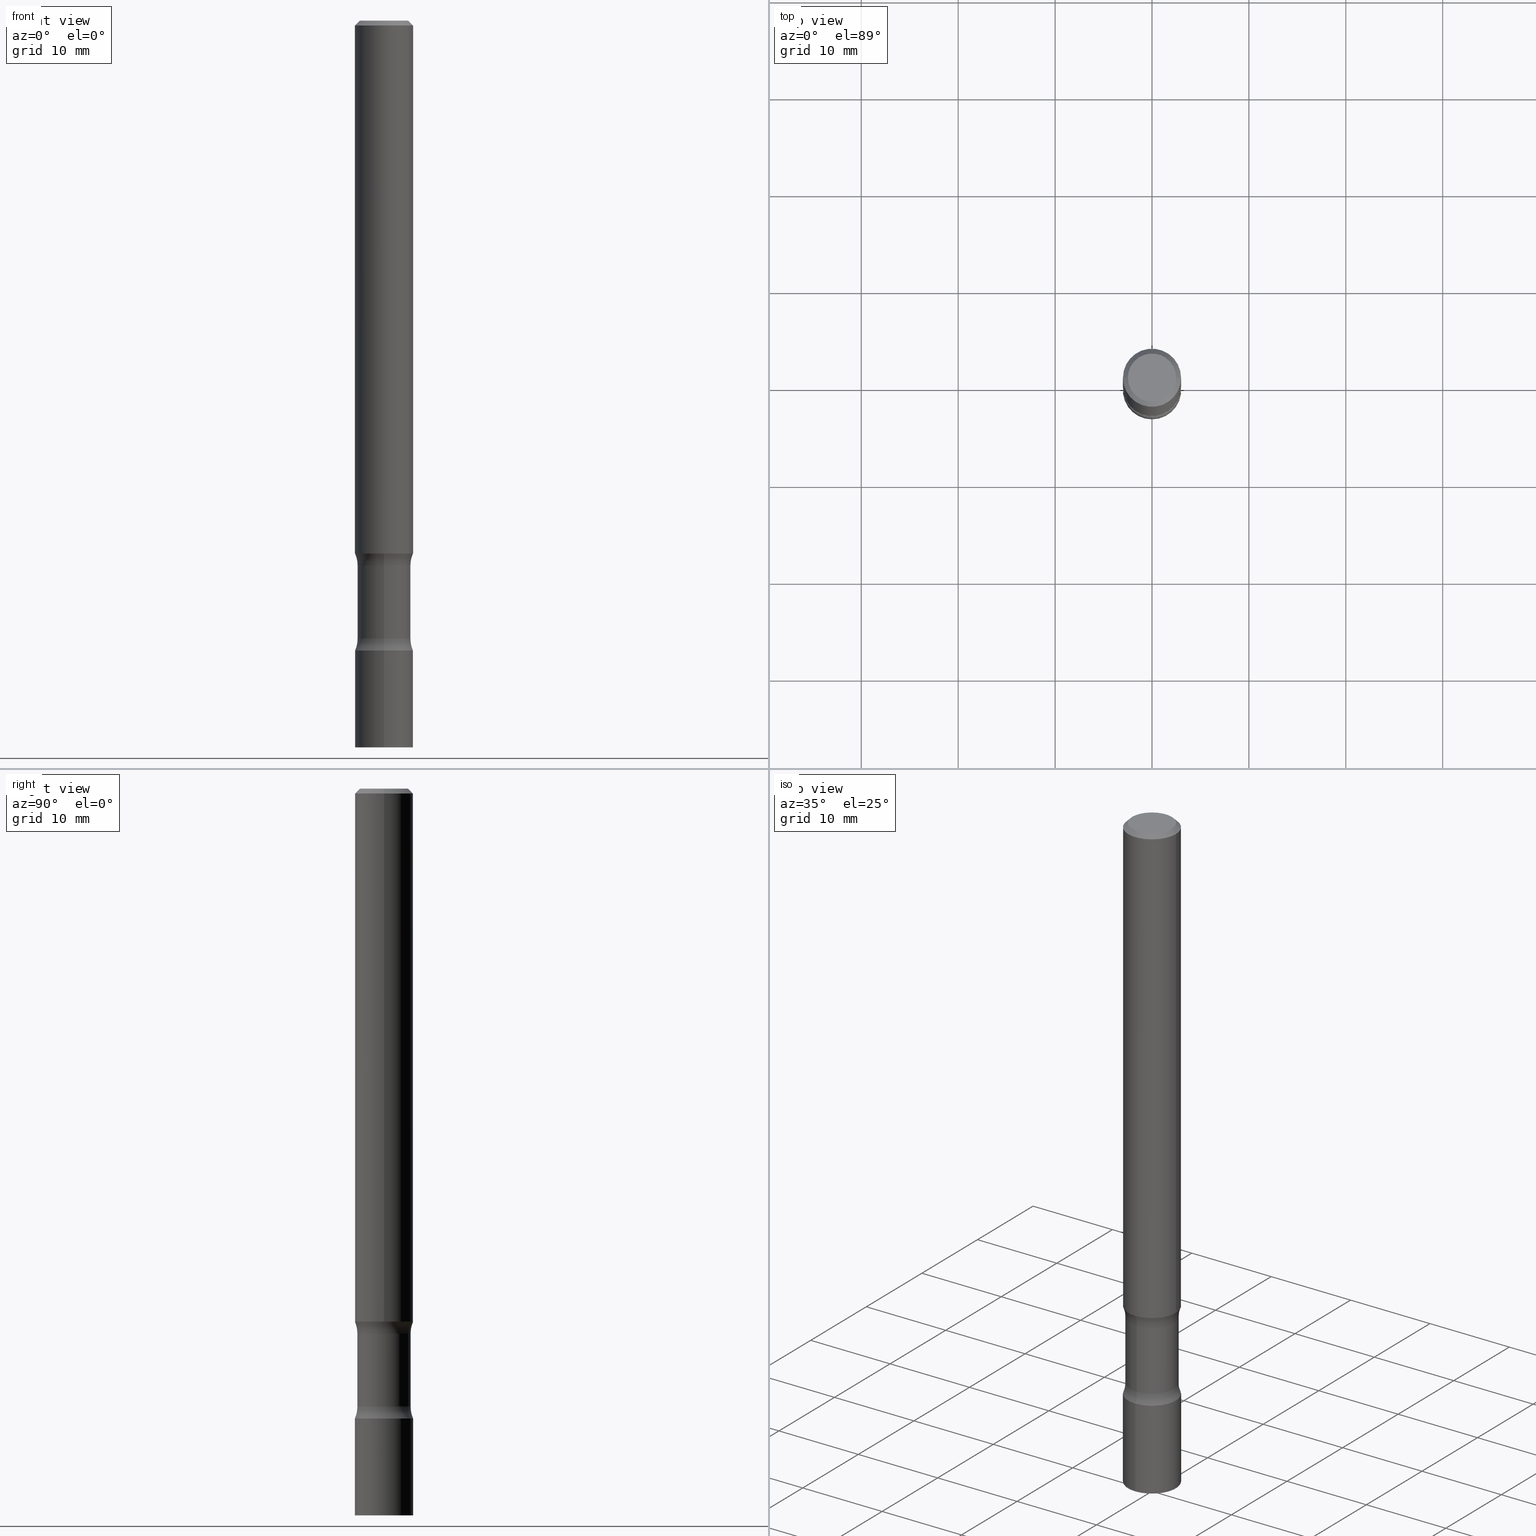
[diagram: canonical four-view strip — front | top / right | iso, engineering-drawing reading convention]
A machine part, canonical four-view strip (front | top / right | iso — engineering-drawing reading convention). The complete STEP part file that produces these views, byte-faithful:
ISO-10303-21;
HEADER;
FILE_DESCRIPTION (( 'STEP AP203' ),
    '1' );
FILE_NAME ('42706.STEP',
    '2024-03-11T13:31:45',
    ( '' ),
    ( '' ),
    'SwSTEP 2.0',
    'SolidWorks 2023',
    '' );
FILE_SCHEMA (( 'CONFIG_CONTROL_DESIGN' ));
ENDSEC;

DATA;
#1 = PERSON_AND_ORGANIZATION_ROLE ( 'design_supplier' ) ;
#2 = CLOSED_SHELL ( 'NONE', ( #250, #276, #174, #384, #5, #373, #360, #263 ) ) ;
#3 = CARTESIAN_POINT ( 'NONE',  ( -8.102248135367581775E-16, -0.1181000000000065886, -2.165399999999999991 ) ) ;
#4 = AXIS2_PLACEMENT_3D ( 'NONE', #475, #319, #123 ) ;
#5 = ADVANCED_FACE ( 'NONE', ( #324 ), #284, .F. ) ;
#6 = DIRECTION ( 'NONE',  ( -2.445468806185136597E-29, 3.491481338843145583E-15, 1.000000000000000000 ) ) ;
#7 = DIRECTION ( 'NONE',  ( -1.000000000000000000, 6.982962677686265922E-15, 0.000000000000000000 ) ) ;
#8 = ORIENTED_EDGE ( 'NONE', *, *, #107, .T. ) ;
#9 = CARTESIAN_POINT ( 'NONE',  ( 7.240846453384315929E-29, -1.028119662195171812E-14, -2.952799999999999869 ) ) ;
#10 = CARTESIAN_POINT ( 'NONE',  ( 6.275416607577824437E-29, -8.910393618002115250E-15, -2.559099999999999486 ) ) ;
#11 = DIRECTION ( 'NONE',  ( 6.982962677686265133E-15, 1.000000000000000000, -4.682631606054515961E-15 ) ) ;
#12 = CONICAL_SURFACE ( 'NONE', #294, 0.1180999999999996219, 0.7853981633974476129 ) ;
#13 = APPROVAL_DATE_TIME ( #483, #482 ) ;
#14 = VERTEX_POINT ( 'NONE', #454 ) ;
#15 = CARTESIAN_POINT ( 'NONE',  ( 8.391509709327467294E-16, 0.1180999999999898797, -2.952800000000000313 ) ) ;
#16 = EDGE_CURVE ( 'NONE', #358, #102, #217, .T. ) ;
#17 = ORIENTED_EDGE ( 'NONE', *, *, #436, .T. ) ;
#18 = DIRECTION ( 'NONE',  ( 1.613693020239834494E-29, -4.682631606054515961E-15, -1.000000000000000000 ) ) ;
#19 = EDGE_LOOP ( 'NONE', ( #281, #17, #331, #172 ) ) ;
#20 = DIRECTION ( 'NONE',  ( 1.000000000000000000, -6.982962677686265922E-15, 0.000000000000000000 ) ) ;
#21 = CIRCLE ( 'NONE', #311, 0.1181000000000001354 ) ;
#22 = EDGE_LOOP ( 'NONE', ( #314, #97, #202, #175 ) ) ;
#23 = CARTESIAN_POINT ( 'NONE',  ( 6.196172983594957992E-29, -8.680443625292024117E-15, -2.509992999480725295 ) ) ;
#24 = PERSON_AND_ORGANIZATION ( #183, #393 ) ;
#25 = EDGE_LOOP ( 'NONE', ( #427, #494 ) ) ;
#26 = CARTESIAN_POINT ( 'NONE',  ( 5.295418152913295466E-29, -7.560453691130949000E-15, -2.165400000000000436 ) ) ;
#27 = APPROVAL_STATUS ( 'not_yet_approved' ) ;
#28 = EDGE_CURVE ( 'NONE', #151, #14, #30, .T. ) ;
#29 = CC_DESIGN_PERSON_AND_ORGANIZATION_ASSIGNMENT ( #361, #1, ( #339 ) ) ;
#30 = CIRCLE ( 'NONE', #346, 0.1250000000000000000 ) ;
#31 = AXIS2_PLACEMENT_3D ( 'NONE', #238, #180, #243 ) ;
#32 = VERTEX_POINT ( 'NONE', #385 ) ;
#33 = ORIENTED_EDGE ( 'NONE', *, *, #289, .F. ) ;
#34 = CC_DESIGN_DATE_AND_TIME_ASSIGNMENT ( #287, #96, ( #381 ) ) ;
#35 = DIMENSIONAL_EXPONENTS ( 1.000000000000000000, 0.000000000000000000, 0.000000000000000000, 0.000000000000000000, 0.000000000000000000, 0.000000000000000000, 0.000000000000000000 ) ;
#36 = CARTESIAN_POINT ( 'NONE',  ( 5.295418152913295466E-29, -7.560453691130949000E-15, -2.165400000000000436 ) ) ;
#37 = FACE_OUTER_BOUND ( 'NONE', #224, .T. ) ;
#38 = ADVANCED_FACE ( 'NONE', ( #425 ), #153, .T. ) ;
#39 = DIRECTION ( 'NONE',  ( 1.000000000000000000, -6.982962677686265922E-15, 4.876176775795935793E-29 ) ) ;
#40 = CIRCLE ( 'NONE', #139, 0.1181000000000000799 ) ;
#41 = VERTEX_POINT ( 'NONE', #500 ) ;
#42 = CARTESIAN_POINT ( 'NONE',  ( -1.598839058380594715E-15, -0.2330500000000068073, -2.214507000519273294 ) ) ;
#43 = CALENDAR_DATE ( 2024, 11, 3 ) ;
#44 = EDGE_CURVE ( 'NONE', #14, #144, #379, .T. ) ;
#45 = DIRECTION ( 'NONE',  ( -2.452196712741912145E-29, 3.481846593725182819E-15, 1.000000000000000000 ) ) ;
#46 = PERSON_AND_ORGANIZATION ( #183, #393 ) ;
#47 = DIRECTION ( 'NONE',  ( 6.982962677686265922E-15, 1.000000000000000000, -5.056636730521555250E-15 ) ) ;
#48 = CIRCLE ( 'NONE', #95, 0.1080499999999995075 ) ;
#49 = COORDINATED_UNIVERSAL_TIME_OFFSET ( 5, 0, .BEHIND. ) ;
#50 = CARTESIAN_POINT ( 'NONE',  ( -8.246878922346764763E-16, -0.1181000000000104189, -2.952799999999998981 ) ) ;
#51 = DIRECTION ( 'NONE',  ( 1.000000000000000000, -6.982962677686265922E-15, 0.000000000000000000 ) ) ;
#52 = EDGE_CURVE ( 'NONE', #184, #41, #77, .T. ) ;
#53 = CARTESIAN_POINT ( 'NONE',  ( 7.220980290903470182E-29, -1.030964609733603853E-14, -2.952799999999999869 ) ) ;
#54 = ORIENTED_EDGE ( 'NONE', *, *, #313, .T. ) ;
#55 = FACE_OUTER_BOUND ( 'NONE', #71, .T. ) ;
#56 = CIRCLE ( 'NONE', #119, 0.1249999999999999584 ) ;
#57 = AXIS2_PLACEMENT_3D ( 'NONE', #236, #471, #11 ) ;
#58 =( GEOMETRIC_REPRESENTATION_CONTEXT ( 3 ) GLOBAL_UNCERTAINTY_ASSIGNED_CONTEXT ( ( #499 ) ) GLOBAL_UNIT_ASSIGNED_CONTEXT ( ( #398, #318, #479 ) ) REPRESENTATION_CONTEXT ( 'NONE', 'WORKASPACE' ) );
#59 = ORIENTED_EDGE ( 'NONE', *, *, #449, .T. ) ;
#60 = FACE_OUTER_BOUND ( 'NONE', #407, .T. ) ;
#61 = DIRECTION ( 'NONE',  ( 1.613693020239834213E-29, -4.682631606054515961E-15, -1.000000000000000000 ) ) ;
#62 = DIRECTION ( 'NONE',  ( 6.982962677686265922E-15, 1.000000000000000000, -5.056636730521544995E-15 ) ) ;
#63 = ORIENTED_EDGE ( 'NONE', *, *, #16, .T. ) ;
#64 = DIRECTION ( 'NONE',  ( 1.613693020239834494E-29, -4.682631606054515961E-15, -1.000000000000000000 ) ) ;
#65 = AXIS2_PLACEMENT_3D ( 'NONE', #368, #451, #94 ) ;
#66 = APPROVAL_ROLE ( '' ) ;
#67 = ORIENTED_EDGE ( 'NONE', *, *, #255, .F. ) ;
#68 = CC_DESIGN_SECURITY_CLASSIFICATION ( #381, ( #339 ) ) ;
#69 = APPROVAL ( #316, 'UNSPECIFIED' ) ;
#70 = DIRECTION ( 'NONE',  ( -2.445468806185136877E-29, 3.491481338843145188E-15, 1.000000000000000000 ) ) ;
#71 = EDGE_LOOP ( 'NONE', ( #59, #383 ) ) ;
#72 = CIRCLE ( 'NONE', #347, 0.1181000000000000799 ) ;
#73 = DIRECTION ( 'NONE',  ( -0.7071067811865469066, 2.468850131082251144E-15, -0.7071067811865479058 ) ) ;
#74 = CYLINDRICAL_SURFACE ( 'NONE', #120, 0.1180999999999998301 ) ;
#75 = ORIENTED_EDGE ( 'NONE', *, *, #310, .F. ) ;
#76 = EDGE_CURVE ( 'NONE', #288, #291, #391, .T. ) ;
#77 = LINE ( 'NONE', #111, #488 ) ;
#78 = MANIFOLD_SOLID_BREP ( 'Body-Move/Copy2[4]', #2 ) ;
#79 = CIRCLE ( 'NONE', #31, 0.09809999999999970133 ) ;
#80 = CC_DESIGN_APPROVAL ( #482, ( #339 ) ) ;
#81 = CARTESIAN_POINT ( 'NONE',  ( 5.719349289492271294E-29, -7.296791547408544304E-15, -2.214507000519274627 ) ) ;
#82 = EDGE_CURVE ( 'NONE', #386, #142, #157, .T. ) ;
#83 = CYLINDRICAL_SURFACE ( 'NONE', #228, 0.1080499999999997296 ) ;
#84 = CYLINDRICAL_SURFACE ( 'NONE', #113, 0.1080499999999997296 ) ;
#85 = CALENDAR_DATE ( 2024, 11, 3 ) ;
#86 = CARTESIAN_POINT ( 'NONE',  ( 5.640105665509403728E-29, -7.066841554698455538E-15, -2.165400000000000436 ) ) ;
#87 = DATE_AND_TIME ( #357, #164 ) ;
#88 = CARTESIAN_POINT ( 'NONE',  ( 7.545091173240547993E-16, 0.1080499999999922217, -2.214507000519275071 ) ) ;
#89 = MANIFOLD_SOLID_BREP ( 'Body-Move/Copy2[1]', #303 ) ;
#90 = APPROVAL_ROLE ( '' ) ;
#91 = ORIENTED_EDGE ( 'NONE', *, *, #295, .F. ) ;
#92 = CARTESIAN_POINT ( 'NONE',  ( 6.275416607577824437E-29, -8.910393618002115250E-15, -2.559099999999999486 ) ) ;
#93 = ORIENTED_EDGE ( 'NONE', *, *, #436, .F. ) ;
#94 = DIRECTION ( 'NONE',  ( -1.000000000000000000, 6.982962677686265922E-15, -4.876176775795935793E-29 ) ) ;
#95 = AXIS2_PLACEMENT_3D ( 'NONE', #378, #285, #246 ) ;
#96 = DATE_TIME_ROLE ( 'classification_date' ) ;
#97 = ORIENTED_EDGE ( 'NONE', *, *, #459, .T. ) ;
#98 = DIRECTION ( 'NONE',  ( 1.000000000000000000, -6.982962677686270655E-15, 0.000000000000000000 ) ) ;
#99 = DIRECTION ( 'NONE',  ( 6.982962677686265133E-15, 1.000000000000000000, -4.682631606054515961E-15 ) ) ;
#100 = ORIENTED_EDGE ( 'NONE', *, *, #463, .F. ) ;
#101 = CARTESIAN_POINT ( 'NONE',  ( 0.1181000000000000383, -8.385141583365697263E-15, -2.165400000000000436 ) ) ;
#102 = VERTEX_POINT ( 'NONE', #305 ) ;
#103 = VECTOR ( 'NONE', #45, 39.37007874015748143 ) ;
#104 = CIRCLE ( 'NONE', #130, 0.09809999999999970133 ) ;
#105 = LINE ( 'NONE', #254, #192 ) ;
#106 = EDGE_CURVE ( 'NONE', #32, #450, #105, .T. ) ;
#107 = EDGE_CURVE ( 'NONE', #291, #301, #335, .T. ) ;
#108 = ORIENTED_EDGE ( 'NONE', *, *, #152, .F. ) ;
#109 = DIRECTION ( 'NONE',  ( -6.982962677686265922E-15, -1.000000000000000000, 0.000000000000000000 ) ) ;
#110 = DIRECTION ( 'NONE',  ( -2.445468806185136877E-29, 3.491481338843145188E-15, 1.000000000000000000 ) ) ;
#111 = CARTESIAN_POINT ( 'NONE',  ( -0.1180999999999996219, 7.548582654578824992E-16, -0.02000000000000000042 ) ) ;
#112 = AXIS2_PLACEMENT_3D ( 'NONE', #36, #460, #462 ) ;
#113 = AXIS2_PLACEMENT_3D ( 'NONE', #476, #399, #434 ) ;
#114 = ADVANCED_FACE ( 'NONE', ( #187 ), #423, .F. ) ;
#115 = AXIS2_PLACEMENT_3D ( 'NONE', #206, #355, #440 ) ;
#116 = ORIENTED_EDGE ( 'NONE', *, *, #44, .F. ) ;
#117 = ORIENTED_EDGE ( 'NONE', *, *, #168, .F. ) ;
#118 = CARTESIAN_POINT ( 'NONE',  ( 8.246878922348109770E-16, 0.1180999999999911149, -2.559099999999999930 ) ) ;
#119 = AXIS2_PLACEMENT_3D ( 'NONE', #508, #239, #317 ) ;
#120 = AXIS2_PLACEMENT_3D ( 'NONE', #154, #300, #389 ) ;
#121 = LOCAL_TIME ( 9, 31, 45.00000000000000000, #49 ) ;
#122 = DIRECTION ( 'NONE',  ( 1.613693020239834494E-29, -4.682631606054515961E-15, -1.000000000000000000 ) ) ;
#123 = DIRECTION ( 'NONE',  ( -1.000000000000000000, 6.982962677686265922E-15, 0.000000000000000000 ) ) ;
#124 = DIRECTION ( 'NONE',  ( -2.452196712741911865E-29, 3.481846593725182819E-15, 1.000000000000000000 ) ) ;
#125 = LENGTH_MEASURE_WITH_UNIT ( LENGTH_MEASURE( 0.02539999999999999897 ), #401 );
#126 = APPROVAL ( #27, 'UNSPECIFIED' ) ;
#127 = DIRECTION ( 'NONE',  ( 2.452196712741911584E-29, -3.481846593725182819E-15, -1.000000000000000000 ) ) ;
#128 = CC_DESIGN_DATE_AND_TIME_ASSIGNMENT ( #87, #237, ( #161 ) ) ;
#129 = DATE_AND_TIME ( #85, #214 ) ;
#130 = AXIS2_PLACEMENT_3D ( 'NONE', #467, #194, #306 ) ;
#131 = FACE_OUTER_BOUND ( 'NONE', #227, .T. ) ;
#132 = PERSON_AND_ORGANIZATION_ROLE ( 'design_owner' ) ;
#133 = DIRECTION ( 'NONE',  ( -2.452196712741911865E-29, 3.481846593725182819E-15, 1.000000000000000000 ) ) ;
#134 = ORIENTED_EDGE ( 'NONE', *, *, #310, .T. ) ;
#135 = CARTESIAN_POINT ( 'NONE',  ( 6.258199221908381703E-29, -8.935049894233492186E-15, -2.559099999999999486 ) ) ;
#136 = ADVANCED_FACE ( 'NONE', ( #397 ), #444, .T. ) ;
#137 = ORIENTED_EDGE ( 'NONE', *, *, #255, .T. ) ;
#138 = DIRECTION ( 'NONE',  ( 1.613693020239834494E-29, -4.682631606054515961E-15, -1.000000000000000000 ) ) ;
#139 = AXIS2_PLACEMENT_3D ( 'NONE', #307, #469, #169 ) ;
#140 = LOCAL_TIME ( 9, 31, 45.00000000000000000, #486 ) ;
#141 = COORDINATED_UNIVERSAL_TIME_OFFSET ( 5, 0, .BEHIND. ) ;
#142 = VERTEX_POINT ( 'NONE', #118 ) ;
#143 = CARTESIAN_POINT ( 'NONE',  ( 6.196172983594957992E-29, -8.680443625292024117E-15, -2.509992999480725295 ) ) ;
#144 = VERTEX_POINT ( 'NONE', #3 ) ;
#145 = VERTEX_POINT ( 'NONE', #309 ) ;
#146 = CARTESIAN_POINT ( 'NONE',  ( 0.09809999999999970133, -7.765346469475317862E-16, -4.695363739109941188E-17 ) ) ;
#147 = EDGE_CURVE ( 'NONE', #326, #145, #403, .T. ) ;
#148 = AXIS2_PLACEMENT_3D ( 'NONE', #42, #474, #438 ) ;
#149 = CC_DESIGN_APPROVAL ( #126, ( #381 ) ) ;
#150 = DIRECTION ( 'NONE',  ( -2.452196712741912145E-29, 3.481846593725182819E-15, 1.000000000000000000 ) ) ;
#151 = VERTEX_POINT ( 'NONE', #88 ) ;
#152 = EDGE_CURVE ( 'NONE', #142, #416, #56, .T. ) ;
#153 = CYLINDRICAL_SURFACE ( 'NONE', #336, 0.1180999999999998301 ) ;
#154 = CARTESIAN_POINT ( 'NONE',  ( 0.000000000000000000, 0.000000000000000000, 0.000000000000000000 ) ) ;
#155 = EDGE_LOOP ( 'NONE', ( #232, #278, #260, #370 ) ) ;
#156 = DIRECTION ( 'NONE',  ( 6.982962677686265922E-15, 1.000000000000000000, -4.626330217890366181E-15 ) ) ;
#157 = CIRCLE ( 'NONE', #421, 0.1181000000000000799 ) ;
#158 = CIRCLE ( 'NONE', #461, 0.1180999999999996081 ) ;
#159 = LOCAL_TIME ( 9, 31, 45.00000000000000000, #141 ) ;
#160 = LINE ( 'NONE', #189, #354 ) ;
#161 = PRODUCT_DEFINITION ( 'UNKNOWN', '', #339, #340 ) ;
#162 = DIRECTION ( 'NONE',  ( 0.7071067811865469066, -7.319954787623252890E-15, -0.7071067811865479058 ) ) ;
#163 = DIRECTION ( 'NONE',  ( 6.982962677686265922E-15, 1.000000000000000000, -3.481846593725182819E-15 ) ) ;
#164 = LOCAL_TIME ( 9, 31, 45.00000000000000000, #445 ) ;
#165 = CARTESIAN_POINT ( 'NONE',  ( 0.000000000000000000, 0.000000000000000000, 0.000000000000000000 ) ) ;
#166 = APPLICATION_PROTOCOL_DEFINITION ( 'international standard', 'config_control_design', 1994, #369 ) ;
#167 = DIRECTION ( 'NONE',  ( 1.613693020239834494E-29, -4.682631606054515961E-15, -1.000000000000000000 ) ) ;
#168 = EDGE_CURVE ( 'NONE', #326, #358, #409, .T. ) ;
#169 = DIRECTION ( 'NONE',  ( 6.982962677686265922E-15, 1.000000000000000000, -4.626330217890366181E-15 ) ) ;
#170 = CARTESIAN_POINT ( 'NONE',  ( 5.725499170287629715E-29, -7.287984568080112646E-15, -2.214507000519274627 ) ) ;
#171 = AXIS2_PLACEMENT_3D ( 'NONE', #53, #269, #231 ) ;
#172 = ORIENTED_EDGE ( 'NONE', *, *, #52, .F. ) ;
#173 = CARTESIAN_POINT ( 'NONE',  ( 0.000000000000000000, 0.000000000000000000, 0.000000000000000000 ) ) ;
#174 = ADVANCED_FACE ( 'NONE', ( #208 ), #470, .F. ) ;
#175 = ORIENTED_EDGE ( 'NONE', *, *, #107, .F. ) ;
#176 = ORIENTED_EDGE ( 'NONE', *, *, #147, .F. ) ;
#177 = DIRECTION ( 'NONE',  ( -2.452196712741911865E-29, 3.481846593725182819E-15, 1.000000000000000000 ) ) ;
#178 = AXIS2_PLACEMENT_3D ( 'NONE', #455, #415, #98 ) ;
#179 = ORIENTED_EDGE ( 'NONE', *, *, #328, .T. ) ;
#180 = DIRECTION ( 'NONE',  ( -2.445468806185136597E-29, 3.491481338843145583E-15, 1.000000000000000000 ) ) ;
#181 = CC_DESIGN_PERSON_AND_ORGANIZATION_ASSIGNMENT ( #477, #132, ( #507 ) ) ;
#182 = EDGE_LOOP ( 'NONE', ( #487, #209, #186, #108 ) ) ;
#183 = PERSON ( 'UNSPECIFIED', 'UNSPECIFIED', 'UNSPECIFIED', ('UNSPECIFIED'), ('UNSPECIFIED'), ('UNSPECIFIED') ) ;
#184 = VERTEX_POINT ( 'NONE', #264 ) ;
#185 = AXIS2_PLACEMENT_3D ( 'NONE', #9, #205, #364 ) ;
#186 = ORIENTED_EDGE ( 'NONE', *, *, #289, .T. ) ;
#187 = FACE_OUTER_BOUND ( 'NONE', #439, .T. ) ;
#188 = CARTESIAN_POINT ( 'NONE',  ( 0.000000000000000000, 0.000000000000000000, 0.000000000000000000 ) ) ;
#189 = CARTESIAN_POINT ( 'NONE',  ( 0.1180999999999996219, -8.800544403136782737E-16, -0.02000000000000000042 ) ) ;
#190 = CARTESIAN_POINT ( 'NONE',  ( 6.275416607577824437E-29, -8.910393618002115250E-15, -2.559099999999999486 ) ) ;
#191 = PLANE ( 'NONE',  #171 ) ;
#192 = VECTOR ( 'NONE', #223, 39.37007874015748143 ) ;
#193 = CIRCLE ( 'NONE', #501, 0.1249999999999999584 ) ;
#194 = DIRECTION ( 'NONE',  ( -2.445468806185136597E-29, 3.491481338843145583E-15, 1.000000000000000000 ) ) ;
#195 = ORIENTED_EDGE ( 'NONE', *, *, #16, .F. ) ;
#196 = DIRECTION ( 'NONE',  ( 1.000000000000000000, -6.860497997771530774E-15, 4.826211496003704104E-29 ) ) ;
#197 = EDGE_CURVE ( 'NONE', #358, #326, #21, .T. ) ;
#198 = DIRECTION ( 'NONE',  ( -2.452196712741911865E-29, 3.481846593725182819E-15, 1.000000000000000000 ) ) ;
#199 = PERSON_AND_ORGANIZATION ( #183, #393 ) ;
#200 = AXIS2_PLACEMENT_3D ( 'NONE', #484, #61, #498 ) ;
#201 = AXIS2_PLACEMENT_3D ( 'NONE', #170, #320, #480 ) ;
#202 = ORIENTED_EDGE ( 'NONE', *, *, #349, .F. ) ;
#203 = FACE_OUTER_BOUND ( 'NONE', #182, .T. ) ;
#204 = APPROVAL_DATE_TIME ( #129, #69 ) ;
#205 = DIRECTION ( 'NONE',  ( -2.452196712741911865E-29, 3.481846593725182819E-15, 1.000000000000000000 ) ) ;
#206 = CARTESIAN_POINT ( 'NONE',  ( 0.000000000000000000, 0.000000000000000000, 0.000000000000000000 ) ) ;
#207 = DIRECTION ( 'NONE',  ( -1.613693020239834213E-29, 4.682631606054515961E-15, 1.000000000000000000 ) ) ;
#208 = FACE_OUTER_BOUND ( 'NONE', #155, .T. ) ;
#209 = ORIENTED_EDGE ( 'NONE', *, *, #463, .T. ) ;
#210 = EDGE_CURVE ( 'NONE', #41, #301, #213, .T. ) ;
#211 = PLANE ( 'NONE',  #65 ) ;
#212 = VECTOR ( 'NONE', #150, 39.37007874015748143 ) ;
#213 = CIRCLE ( 'NONE', #304, 0.1180999999999996219 ) ;
#214 = LOCAL_TIME ( 9, 31, 45.00000000000000000, #406 ) ;
#215 = ORIENTED_EDGE ( 'NONE', *, *, #328, .F. ) ;
#216 = ORIENTED_EDGE ( 'NONE', *, *, #233, .F. ) ;
#217 = LINE ( 'NONE', #377, #212 ) ;
#218 = DIRECTION ( 'NONE',  ( -2.445468806185136597E-29, 3.491481338843145583E-15, 1.000000000000000000 ) ) ;
#219 = EDGE_LOOP ( 'NONE', ( #251, #54, #375, #33 ) ) ;
#220 = CARTESIAN_POINT ( 'NONE',  ( 7.545091173240683085E-16, 0.1080499999999889743, -2.952800000000000313 ) ) ;
#221 = AXIS2_PLACEMENT_3D ( 'NONE', #372, #418, #99 ) ;
#222 = ORIENTED_EDGE ( 'NONE', *, *, #44, .T. ) ;
#223 = DIRECTION ( 'NONE',  ( 1.613693020239834494E-29, -4.682631606054515961E-15, -1.000000000000000000 ) ) ;
#224 = EDGE_LOOP ( 'NONE', ( #502, #117 ) ) ;
#225 = EDGE_CURVE ( 'NONE', #142, #386, #40, .T. ) ;
#226 = AXIS2_PLACEMENT_3D ( 'NONE', #81, #229, #395 ) ;
#227 = EDGE_LOOP ( 'NONE', ( #137, #390, #75, #91 ) ) ;
#228 = AXIS2_PLACEMENT_3D ( 'NONE', #230, #167, #47 ) ;
#229 = DIRECTION ( 'NONE',  ( 1.613693020239834494E-29, -4.682631606054515961E-15, -1.000000000000000000 ) ) ;
#230 = CARTESIAN_POINT ( 'NONE',  ( 6.910727549646248509E-29, -1.075394568130577733E-14, -2.952799999999999869 ) ) ;
#231 = DIRECTION ( 'NONE',  ( 6.982962677686265922E-15, 1.000000000000000000, -3.481846593725182819E-15 ) ) ;
#232 = ORIENTED_EDGE ( 'NONE', *, *, #313, .F. ) ;
#233 = EDGE_CURVE ( 'NONE', #144, #14, #158, .T. ) ;
#234 = DIRECTION ( 'NONE',  ( -6.982962677686265922E-15, -1.000000000000000000, 4.626330217890364603E-15 ) ) ;
#235 = CIRCLE ( 'NONE', #178, 0.1181000000000000383 ) ;
#236 = CARTESIAN_POINT ( 'NONE',  ( 5.725499170287629715E-29, -7.287984568080112646E-15, -2.214507000519274627 ) ) ;
#237 = DATE_TIME_ROLE ( 'creation_date' ) ;
#238 = CARTESIAN_POINT ( 'NONE',  ( 1.148236555768741665E-45, -1.639377487418492057E-31, -4.695363739110452099E-17 ) ) ;
#239 = DIRECTION ( 'NONE',  ( -1.000000000000000000, 6.982962677686265922E-15, -4.883557194083112340E-29 ) ) ;
#240 = ORIENTED_EDGE ( 'NONE', *, *, #82, .T. ) ;
#241 = CARTESIAN_POINT ( 'NONE',  ( -8.102248135367553179E-16, -0.1181000000000089756, -2.559099999999999042 ) ) ;
#242 = ORIENTED_EDGE ( 'NONE', *, *, #28, .T. ) ;
#243 = DIRECTION ( 'NONE',  ( 1.000000000000000000, -6.982962677686266711E-15, 4.877161320636781926E-29 ) ) ;
#244 = CONICAL_SURFACE ( 'NONE', #4, 0.1180999999999996219, 0.7853981633974476129 ) ;
#245 = ORIENTED_EDGE ( 'NONE', *, *, #152, .T. ) ;
#246 = DIRECTION ( 'NONE',  ( 6.982962677686266711E-15, 1.000000000000000000, -5.056636730521565505E-15 ) ) ;
#247 = MANIFOLD_SOLID_BREP ( 'Body-Move/Copy2[2]', #353 ) ;
#248 = ORIENTED_EDGE ( 'NONE', *, *, #168, .T. ) ;
#249 = CARTESIAN_POINT ( 'NONE',  ( 0.1180999999999996219, -8.800544403136782737E-16, -0.02000000000000000042 ) ) ;
#250 = ADVANCED_FACE ( 'NONE', ( #131 ), #84, .T. ) ;
#251 = ORIENTED_EDGE ( 'NONE', *, *, #106, .F. ) ;
#252 = PLANE ( 'NONE',  #435 ) ;
#253 = TOROIDAL_SURFACE ( 'NONE', #453, 0.2330499999999999239, 0.1249999999999999584 ) ;
#254 = CARTESIAN_POINT ( 'NONE',  ( -7.412768086591430143E-16, -0.1080500000000104988, -2.952799999999998981 ) ) ;
#255 = EDGE_CURVE ( 'NONE', #151, #32, #392, .T. ) ;
#256 = CARTESIAN_POINT ( 'NONE',  ( 0.1180999999999998301, -8.246878922347468821E-16, 5.758764772214991332E-30 ) ) ;
#257 = DIRECTION ( 'NONE',  ( 6.860497997771531562E-15, 1.000000000000000000, 0.000000000000000000 ) ) ;
#258 = ORIENTED_EDGE ( 'NONE', *, *, #147, .T. ) ;
#259 = AXIS2_PLACEMENT_3D ( 'NONE', #344, #388, #348 ) ;
#260 = ORIENTED_EDGE ( 'NONE', *, *, #233, .T. ) ;
#261 = CARTESIAN_POINT ( 'NONE',  ( 6.258199221908381703E-29, -8.935049894233492186E-15, -2.559099999999999486 ) ) ;
#262 = EDGE_CURVE ( 'NONE', #32, #144, #380, .T. ) ;
#263 = ADVANCED_FACE ( 'NONE', ( #271 ), #83, .T. ) ;
#264 = CARTESIAN_POINT ( 'NONE',  ( -0.09809999999999970133, 7.199434520694515404E-16, -4.695363739110943904E-17 ) ) ;
#265 = AXIS2_PLACEMENT_3D ( 'NONE', #261, #127, #163 ) ;
#266 = APPROVAL_PERSON_ORGANIZATION ( #46, #69, #277 ) ;
#267 = LINE ( 'NONE', #433, #422 ) ;
#268 = DIRECTION ( 'NONE',  ( 6.982962677686265922E-15, 1.000000000000000000, -4.626330217890385113E-15 ) ) ;
#269 = DIRECTION ( 'NONE',  ( 2.452196712741911584E-29, -3.481846593725182819E-15, -1.000000000000000000 ) ) ;
#270 = APPLICATION_CONTEXT ( 'configuration controlled 3d designs of mechanical parts and assemblies' ) ;
#271 = FACE_OUTER_BOUND ( 'NONE', #219, .T. ) ;
#272 = CARTESIAN_POINT ( 'NONE',  ( 8.391509709326788873E-16, 0.1181000000000001077, -4.112060827189444448E-16 ) ) ;
#273 = PERSON_AND_ORGANIZATION ( #183, #393 ) ;
#274 = CIRCLE ( 'NONE', #366, 0.1181000000000000799 ) ;
#275 = AXIS2_PLACEMENT_3D ( 'NONE', #143, #18, #62 ) ;
#276 = ADVANCED_FACE ( 'NONE', ( #203 ), #441, .F. ) ;
#277 = APPROVAL_ROLE ( '' ) ;
#278 = ORIENTED_EDGE ( 'NONE', *, *, #262, .T. ) ;
#279 = DIRECTION ( 'NONE',  ( -6.982962677686265133E-15, -1.000000000000000000, 3.481846593725182819E-15 ) ) ;
#280 = ADVANCED_FACE ( 'NONE', ( #322 ), #12, .T. ) ;
#281 = ORIENTED_EDGE ( 'NONE', *, *, #334, .F. ) ;
#282 = DIRECTION ( 'NONE',  ( -6.982962677686265922E-15, -1.000000000000000000, 4.626330217890366181E-15 ) ) ;
#283 = DIRECTION ( 'NONE',  ( 2.445468806185136597E-29, -3.491481338843145583E-15, -1.000000000000000000 ) ) ;
#284 = PLANE ( 'NONE',  #200 ) ;
#285 = DIRECTION ( 'NONE',  ( 1.613693020239834494E-29, -4.682631606054515961E-15, -1.000000000000000000 ) ) ;
#286 = AXIS2_PLACEMENT_3D ( 'NONE', #23, #64, #376 ) ;
#287 = DATE_AND_TIME ( #382, #159 ) ;
#288 = VERTEX_POINT ( 'NONE', #352 ) ;
#289 = EDGE_CURVE ( 'NONE', #450, #416, #506, .T. ) ;
#290 = DIRECTION ( 'NONE',  ( -6.982962677686265922E-15, -1.000000000000000000, 4.626330217890366181E-15 ) ) ;
#291 = VERTEX_POINT ( 'NONE', #101 ) ;
#292 = FACE_OUTER_BOUND ( 'NONE', #431, .T. ) ;
#293 = AXIS2_PLACEMENT_3D ( 'NONE', #165, #198, #350 ) ;
#294 = AXIS2_PLACEMENT_3D ( 'NONE', #448, #283, #7 ) ;
#295 = EDGE_CURVE ( 'NONE', #151, #416, #327, .T. ) ;
#296 = APPROVAL_PERSON_ORGANIZATION ( #404, #482, #90 ) ;
#297 = ORIENTED_EDGE ( 'NONE', *, *, #262, .F. ) ;
#298 = CARTESIAN_POINT ( 'NONE',  ( 1.627379452034838237E-15, 0.2330499999999922633, -2.214507000519275515 ) ) ;
#299 = ORIENTED_EDGE ( 'NONE', *, *, #225, .F. ) ;
#300 = DIRECTION ( 'NONE',  ( -2.445468806185136597E-29, 3.491481338843145583E-15, 1.000000000000000000 ) ) ;
#301 = VERTEX_POINT ( 'NONE', #249 ) ;
#302 = CC_DESIGN_PERSON_AND_ORGANIZATION_ASSIGNMENT ( #273, #365, ( #161 ) ) ;
#303 = CLOSED_SHELL ( 'NONE', ( #343, #136, #114, #481 ) ) ;
#304 = AXIS2_PLACEMENT_3D ( 'NONE', #315, #6, #51 ) ;
#305 = CARTESIAN_POINT ( 'NONE',  ( -8.246878922346858440E-16, -0.1181000000000089895, -2.559099999999999042 ) ) ;
#306 = DIRECTION ( 'NONE',  ( 1.000000000000000000, -6.982962677686266711E-15, 4.877161320636781926E-29 ) ) ;
#307 = CARTESIAN_POINT ( 'NONE',  ( 6.275416607577824437E-29, -8.910393618002115250E-15, -2.559099999999999486 ) ) ;
#308 = FACE_OUTER_BOUND ( 'NONE', #367, .T. ) ;
#309 = CARTESIAN_POINT ( 'NONE',  ( 8.391509709327510681E-16, 0.1180999999999911565, -2.559099999999999930 ) ) ;
#310 = EDGE_CURVE ( 'NONE', #416, #450, #490, .T. ) ;
#311 = AXIS2_PLACEMENT_3D ( 'NONE', #359, #124, #234 ) ;
#312 = APPROVAL_PERSON_ORGANIZATION ( #24, #126, #66 ) ;
#313 = EDGE_CURVE ( 'NONE', #32, #151, #48, .T. ) ;
#314 = ORIENTED_EDGE ( 'NONE', *, *, #321, .T. ) ;
#315 = CARTESIAN_POINT ( 'NONE',  ( 4.890937612370273159E-31, -6.982962677686291609E-17, -0.02000000000000000042 ) ) ;
#316 = APPROVAL_STATUS ( 'not_yet_approved' ) ;
#317 = DIRECTION ( 'NONE',  ( -6.982962677686265922E-15, -1.000000000000000000, 0.000000000000000000 ) ) ;
#318 =( NAMED_UNIT ( * ) PLANE_ANGLE_UNIT ( ) SI_UNIT ( $, .RADIAN. ) );
#319 = DIRECTION ( 'NONE',  ( 2.445468806185136597E-29, -3.491481338843145583E-15, -1.000000000000000000 ) ) ;
#320 = DIRECTION ( 'NONE',  ( 1.613693020239834494E-29, -4.682631606054515961E-15, -1.000000000000000000 ) ) ;
#321 = EDGE_CURVE ( 'NONE', #291, #288, #235, .T. ) ;
#322 = FACE_OUTER_BOUND ( 'NONE', #19, .T. ) ;
#323 = APPLICATION_PROTOCOL_DEFINITION ( 'international standard', 'config_control_design', 1994, #270 ) ;
#324 = FACE_OUTER_BOUND ( 'NONE', #411, .T. ) ;
#325 = FACE_OUTER_BOUND ( 'NONE', #414, .T. ) ;
#326 = VERTEX_POINT ( 'NONE', #15 ) ;
#327 = LINE ( 'NONE', #220, #338 ) ;
#328 = EDGE_CURVE ( 'NONE', #145, #102, #72, .T. ) ;
#329 = ORIENTED_EDGE ( 'NONE', *, *, #225, .T. ) ;
#330 = CIRCLE ( 'NONE', #387, 0.1180999999999996219 ) ;
#331 = ORIENTED_EDGE ( 'NONE', *, *, #349, .T. ) ;
#332 = CARTESIAN_POINT ( 'NONE',  ( 4.890937612370273159E-31, -6.982962677686291609E-17, -0.02000000000000000042 ) ) ;
#333 = EDGE_LOOP ( 'NONE', ( #420, #258, #456, #195 ) ) ;
#334 = EDGE_CURVE ( 'NONE', #363, #184, #79, .T. ) ;
#335 = LINE ( 'NONE', #256, #478 ) ;
#336 = AXIS2_PLACEMENT_3D ( 'NONE', #188, #429, #424 ) ;
#337 = ORIENTED_EDGE ( 'NONE', *, *, #412, .T. ) ;
#338 = VECTOR ( 'NONE', #138, 39.37007874015748143 ) ;
#339 = PRODUCT_DEFINITION_FORMATION_WITH_SPECIFIED_SOURCE ( 'ANY', '', #507, .NOT_KNOWN. ) ;
#340 = DESIGN_CONTEXT ( 'detailed design', #270, 'design' ) ;
#341 = CARTESIAN_POINT ( 'NONE',  ( -1.598839058380592940E-15, -0.2330500000000086391, -2.509992999480723963 ) ) ;
#342 = PRODUCT_DEFINITION_SHAPE ( 'NONE', 'NONE',  #161 ) ;
#343 = ADVANCED_FACE ( 'NONE', ( #417 ), #413, .T. ) ;
#344 = CARTESIAN_POINT ( 'NONE',  ( 5.640105665509403728E-29, -7.066841554698455538E-15, -2.165400000000000436 ) ) ;
#345 = ADVANCED_BREP_SHAPE_REPRESENTATION ( '42706', ( #89, #247, #78, #115 ), #58 ) ;
#346 = AXIS2_PLACEMENT_3D ( 'NONE', #298, #464, #109 ) ;
#347 = AXIS2_PLACEMENT_3D ( 'NONE', #92, #133, #290 ) ;
#348 = DIRECTION ( 'NONE',  ( 6.982962677686265922E-15, 1.000000000000000000, -4.626330217890385113E-15 ) ) ;
#349 = EDGE_CURVE ( 'NONE', #301, #41, #330, .T. ) ;
#350 = DIRECTION ( 'NONE',  ( -6.982962677686265133E-15, -1.000000000000000000, 3.481846593725182819E-15 ) ) ;
#351 = PERSON_AND_ORGANIZATION_ROLE ( 'creator' ) ;
#352 = CARTESIAN_POINT ( 'NONE',  ( -0.1181000000000000383, -2.975990688021221641E-15, -2.165400000000000436 ) ) ;
#353 = CLOSED_SHELL ( 'NONE', ( #38, #280, #493, #426, #432, #468 ) ) ;
#354 = VECTOR ( 'NONE', #162, 39.37007874015748854 ) ;
#355 = DIRECTION ( 'NONE',  ( 0.000000000000000000, 0.000000000000000000, 1.000000000000000000 ) ) ;
#356 = PRODUCT_RELATED_PRODUCT_CATEGORY ( 'detail', '', ( #507 ) ) ;
#357 = CALENDAR_DATE ( 2024, 11, 3 ) ;
#358 = VERTEX_POINT ( 'NONE', #50 ) ;
#359 = CARTESIAN_POINT ( 'NONE',  ( 7.240846453384315929E-29, -1.028119662195171812E-14, -2.952799999999999869 ) ) ;
#360 = ADVANCED_FACE ( 'NONE', ( #325 ), #253, .F. ) ;
#361 = PERSON_AND_ORGANIZATION ( #183, #393 ) ;
#362 = DIRECTION ( 'NONE',  ( -6.982962677686265922E-15, -1.000000000000000000, 4.682631606054515961E-15 ) ) ;
#363 = VERTEX_POINT ( 'NONE', #146 ) ;
#364 = DIRECTION ( 'NONE',  ( -6.982962677686265922E-15, -1.000000000000000000, 4.626330217890364603E-15 ) ) ;
#365 = PERSON_AND_ORGANIZATION_ROLE ( 'creator' ) ;
#366 = AXIS2_PLACEMENT_3D ( 'NONE', #10, #447, #282 ) ;
#367 = EDGE_LOOP ( 'NONE', ( #405, #491, #8, #465 ) ) ;
#368 = CARTESIAN_POINT ( 'NONE',  ( 6.850286386810205815E-16, 0.09809999999999970133, -3.659911380360637715E-16 ) ) ;
#369 = APPLICATION_CONTEXT ( 'configuration controlled 3d designs of mechanical parts and assemblies' ) ;
#370 = ORIENTED_EDGE ( 'NONE', *, *, #28, .F. ) ;
#371 = FACE_OUTER_BOUND ( 'NONE', #25, .T. ) ;
#372 = CARTESIAN_POINT ( 'NONE',  ( 6.185800565425352791E-29, -8.695297518472278916E-15, -2.509992999480725295 ) ) ;
#373 = ADVANCED_FACE ( 'NONE', ( #292 ), #458, .F. ) ;
#374 = PERSON_AND_ORGANIZATION ( #183, #393 ) ;
#375 = ORIENTED_EDGE ( 'NONE', *, *, #295, .T. ) ;
#376 = DIRECTION ( 'NONE',  ( 6.982962677686265922E-15, 1.000000000000000000, -5.056636730521544995E-15 ) ) ;
#377 = CARTESIAN_POINT ( 'NONE',  ( -8.246878922347486570E-16, -0.1181000000000001077, 4.112060827189444448E-16 ) ) ;
#378 = CARTESIAN_POINT ( 'NONE',  ( 5.719349289492271294E-29, -7.296791547408544304E-15, -2.214507000519274627 ) ) ;
#379 = CIRCLE ( 'NONE', #259, 0.1180999999999996081 ) ;
#380 = CIRCLE ( 'NONE', #148, 0.1250000000000000000 ) ;
#381 = SECURITY_CLASSIFICATION ( '', '', #472 ) ;
#382 = CALENDAR_DATE ( 2024, 11, 3 ) ;
#383 = ORIENTED_EDGE ( 'NONE', *, *, #334, .T. ) ;
#384 = ADVANCED_FACE ( 'NONE', ( #60 ), #466, .F. ) ;
#385 = CARTESIAN_POINT ( 'NONE',  ( -7.757508110979558221E-16, -0.1080500000000068073, -2.214507000519274182 ) ) ;
#386 = VERTEX_POINT ( 'NONE', #241 ) ;
#387 = AXIS2_PLACEMENT_3D ( 'NONE', #332, #218, #20 ) ;
#388 = DIRECTION ( 'NONE',  ( 1.613693020239834494E-29, -4.682631606054515961E-15, -1.000000000000000000 ) ) ;
#389 = DIRECTION ( 'NONE',  ( 1.000000000000000000, -6.982962677686266711E-15, 4.876176775795935232E-29 ) ) ;
#390 = ORIENTED_EDGE ( 'NONE', *, *, #106, .T. ) ;
#391 = CIRCLE ( 'NONE', #112, 0.1181000000000000383 ) ;
#392 = CIRCLE ( 'NONE', #226, 0.1080499999999995075 ) ;
#393 = ORGANIZATION ( 'UNSPECIFIED', 'UNSPECIFIED', '' ) ;
#394 = CC_DESIGN_PERSON_AND_ORGANIZATION_ASSIGNMENT ( #199, #351, ( #339 ) ) ;
#395 = DIRECTION ( 'NONE',  ( 6.982962677686266711E-15, 1.000000000000000000, -5.056636730521565505E-15 ) ) ;
#396 = APPROVAL_STATUS ( 'not_yet_approved' ) ;
#397 = FACE_OUTER_BOUND ( 'NONE', #446, .T. ) ;
#398 =( CONVERSION_BASED_UNIT ( 'INCH', #125 ) LENGTH_UNIT ( ) NAMED_UNIT ( #35 ) );
#399 = DIRECTION ( 'NONE',  ( 1.613693020239834494E-29, -4.682631606054515961E-15, -1.000000000000000000 ) ) ;
#400 = AXIS2_PLACEMENT_3D ( 'NONE', #135, #207, #362 ) ;
#401 =( LENGTH_UNIT ( ) NAMED_UNIT ( * ) SI_UNIT ( $, .METRE. ) );
#402 = ORIENTED_EDGE ( 'NONE', *, *, #449, .F. ) ;
#403 = LINE ( 'NONE', #272, #103 ) ;
#404 = PERSON_AND_ORGANIZATION ( #183, #393 ) ;
#405 = ORIENTED_EDGE ( 'NONE', *, *, #459, .F. ) ;
#406 = COORDINATED_UNIVERSAL_TIME_OFFSET ( 5, 0, .BEHIND. ) ;
#407 = EDGE_LOOP ( 'NONE', ( #297, #67, #242, #222 ) ) ;
#408 = CARTESIAN_POINT ( 'NONE',  ( 7.545091173240625893E-16, 0.1080499999999912641, -2.509992999480725739 ) ) ;
#409 = CIRCLE ( 'NONE', #185, 0.1181000000000001354 ) ;
#410 = DATE_AND_TIME ( #489, #140 ) ;
#411 = EDGE_LOOP ( 'NONE', ( #116, #216 ) ) ;
#412 = EDGE_CURVE ( 'NONE', #102, #145, #274, .T. ) ;
#413 = CYLINDRICAL_SURFACE ( 'NONE', #505, 0.1181000000000001077 ) ;
#414 = EDGE_LOOP ( 'NONE', ( #100, #299, #245, #134 ) ) ;
#415 = DIRECTION ( 'NONE',  ( -2.445468806185136597E-29, 3.491481338843145583E-15, 1.000000000000000000 ) ) ;
#416 = VERTEX_POINT ( 'NONE', #408 ) ;
#417 = FACE_OUTER_BOUND ( 'NONE', #333, .T. ) ;
#418 = DIRECTION ( 'NONE',  ( 1.613693020239834494E-29, -4.682631606054515961E-15, -1.000000000000000000 ) ) ;
#419 = APPROVAL_DATE_TIME ( #410, #126 ) ;
#420 = ORIENTED_EDGE ( 'NONE', *, *, #197, .T. ) ;
#421 = AXIS2_PLACEMENT_3D ( 'NONE', #190, #504, #156 ) ;
#422 = VECTOR ( 'NONE', #110, 39.37007874015748143 ) ;
#423 = PLANE ( 'NONE',  #265 ) ;
#424 = DIRECTION ( 'NONE',  ( 1.000000000000000000, -6.982962677686266711E-15, 4.876176775795935232E-29 ) ) ;
#425 = FACE_OUTER_BOUND ( 'NONE', #22, .T. ) ;
#426 = ADVANCED_FACE ( 'NONE', ( #55 ), #211, .F. ) ;
#427 = ORIENTED_EDGE ( 'NONE', *, *, #321, .F. ) ;
#428 = DIRECTION ( 'NONE',  ( -2.438088387897960049E-29, 3.491481338843145188E-15, 1.000000000000000000 ) ) ;
#429 = DIRECTION ( 'NONE',  ( -2.445468806185136597E-29, 3.491481338843145583E-15, 1.000000000000000000 ) ) ;
#430 = CARTESIAN_POINT ( 'NONE',  ( -7.757508110979535541E-16, -0.1080500000000086114, -2.509992999480724407 ) ) ;
#431 = EDGE_LOOP ( 'NONE', ( #329, #240 ) ) ;
#432 = ADVANCED_FACE ( 'NONE', ( #371 ), #252, .F. ) ;
#433 = CARTESIAN_POINT ( 'NONE',  ( -0.1180999999999998301, 8.391509709326771124E-16, -5.809262341591035376E-30 ) ) ;
#434 = DIRECTION ( 'NONE',  ( 6.982962677686265922E-15, 1.000000000000000000, -5.056636730521555250E-15 ) ) ;
#435 = AXIS2_PLACEMENT_3D ( 'NONE', #26, #428, #39 ) ;
#436 = EDGE_CURVE ( 'NONE', #363, #301, #160, .T. ) ;
#437 = FACE_OUTER_BOUND ( 'NONE', #503, .T. ) ;
#438 = DIRECTION ( 'NONE',  ( 6.860497997771530774E-15, 1.000000000000000000, 0.000000000000000000 ) ) ;
#439 = EDGE_LOOP ( 'NONE', ( #337, #179 ) ) ;
#440 = DIRECTION ( 'NONE',  ( 1.000000000000000000, 0.000000000000000000, 0.000000000000000000 ) ) ;
#441 = TOROIDAL_SURFACE ( 'NONE', #221, 0.2330499999999999239, 0.1249999999999999584 ) ;
#442 = CC_DESIGN_APPROVAL ( #69, ( #161 ) ) ;
#443 = MECHANICAL_CONTEXT ( 'NONE', #369, 'mechanical' ) ;
#444 = CYLINDRICAL_SURFACE ( 'NONE', #293, 0.1181000000000001077 ) ;
#445 = COORDINATED_UNIVERSAL_TIME_OFFSET ( 5, 0, .BEHIND. ) ;
#446 = EDGE_LOOP ( 'NONE', ( #176, #248, #63, #215 ) ) ;
#447 = DIRECTION ( 'NONE',  ( -2.452196712741911865E-29, 3.481846593725182819E-15, 1.000000000000000000 ) ) ;
#448 = CARTESIAN_POINT ( 'NONE',  ( 4.890937612370273159E-31, -6.982962677686291609E-17, -0.02000000000000000042 ) ) ;
#449 = EDGE_CURVE ( 'NONE', #184, #363, #104, .T. ) ;
#450 = VERTEX_POINT ( 'NONE', #430 ) ;
#451 = DIRECTION ( 'NONE',  ( 2.438088387897960049E-29, -3.491481338843145188E-15, -1.000000000000000000 ) ) ;
#452 = PERSON_AND_ORGANIZATION_ROLE ( 'classification_officer' ) ;
#453 = AXIS2_PLACEMENT_3D ( 'NONE', #492, #485, #495 ) ;
#454 = CARTESIAN_POINT ( 'NONE',  ( 8.246878922348012149E-16, 0.1180999999999924888, -2.165400000000000880 ) ) ;
#455 = CARTESIAN_POINT ( 'NONE',  ( 5.295418152913295466E-29, -7.560453691130949000E-15, -2.165400000000000436 ) ) ;
#456 = ORIENTED_EDGE ( 'NONE', *, *, #412, .F. ) ;
#457 = ORIENTED_EDGE ( 'NONE', *, *, #210, .T. ) ;
#458 = PLANE ( 'NONE',  #400 ) ;
#459 = EDGE_CURVE ( 'NONE', #288, #41, #267, .T. ) ;
#460 = DIRECTION ( 'NONE',  ( -2.445468806185136597E-29, 3.491481338843145583E-15, 1.000000000000000000 ) ) ;
#461 = AXIS2_PLACEMENT_3D ( 'NONE', #86, #122, #268 ) ;
#462 = DIRECTION ( 'NONE',  ( 1.000000000000000000, -6.982962677686270655E-15, 0.000000000000000000 ) ) ;
#463 = EDGE_CURVE ( 'NONE', #386, #450, #193, .T. ) ;
#464 = DIRECTION ( 'NONE',  ( -1.000000000000000000, 6.982962677686265922E-15, -4.883557194083112340E-29 ) ) ;
#465 = ORIENTED_EDGE ( 'NONE', *, *, #210, .F. ) ;
#466 = TOROIDAL_SURFACE ( 'NONE', #201, 0.2330499999999995353, 0.1250000000000000000 ) ;
#467 = CARTESIAN_POINT ( 'NONE',  ( 1.148236555768741665E-45, -1.639377487418492057E-31, -4.695363739110452099E-17 ) ) ;
#468 = ADVANCED_FACE ( 'NONE', ( #308 ), #74, .T. ) ;
#469 = DIRECTION ( 'NONE',  ( 1.613693020239834494E-29, -4.682631606054515961E-15, -1.000000000000000000 ) ) ;
#470 = TOROIDAL_SURFACE ( 'NONE', #57, 0.2330499999999995353, 0.1250000000000000000 ) ;
#471 = DIRECTION ( 'NONE',  ( 1.613693020239834494E-29, -4.682631606054515961E-15, -1.000000000000000000 ) ) ;
#472 = SECURITY_CLASSIFICATION_LEVEL ( 'unclassified' ) ;
#473 = ORIENTED_EDGE ( 'NONE', *, *, #52, .T. ) ;
#474 = DIRECTION ( 'NONE',  ( 1.000000000000000000, -6.860497997771530774E-15, 4.826211496003704104E-29 ) ) ;
#475 = CARTESIAN_POINT ( 'NONE',  ( 4.890937612370273159E-31, -6.982962677686291609E-17, -0.02000000000000000042 ) ) ;
#476 = CARTESIAN_POINT ( 'NONE',  ( 6.910727549646248509E-29, -1.075394568130577733E-14, -2.952799999999999869 ) ) ;
#477 = PERSON_AND_ORGANIZATION ( #183, #393 ) ;
#478 = VECTOR ( 'NONE', #70, 39.37007874015748143 ) ;
#479 =( NAMED_UNIT ( * ) SI_UNIT ( $, .STERADIAN. ) SOLID_ANGLE_UNIT ( ) );
#480 = DIRECTION ( 'NONE',  ( 6.982962677686265133E-15, 1.000000000000000000, -4.682631606054515961E-15 ) ) ;
#481 = ADVANCED_FACE ( 'NONE', ( #37 ), #191, .T. ) ;
#482 = APPROVAL ( #396, 'UNSPECIFIED' ) ;
#483 = DATE_AND_TIME ( #43, #121 ) ;
#484 = CARTESIAN_POINT ( 'NONE',  ( 5.295418152913295466E-29, -7.560453691130949000E-15, -2.165400000000000436 ) ) ;
#485 = DIRECTION ( 'NONE',  ( 1.613693020239834494E-29, -4.682631606054515961E-15, -1.000000000000000000 ) ) ;
#486 = COORDINATED_UNIVERSAL_TIME_OFFSET ( 5, 0, .BEHIND. ) ;
#487 = ORIENTED_EDGE ( 'NONE', *, *, #82, .F. ) ;
#488 = VECTOR ( 'NONE', #73, 39.37007874015748854 ) ;
#489 = CALENDAR_DATE ( 2024, 11, 3 ) ;
#490 = CIRCLE ( 'NONE', #275, 0.1080499999999999378 ) ;
#491 = ORIENTED_EDGE ( 'NONE', *, *, #76, .T. ) ;
#492 = CARTESIAN_POINT ( 'NONE',  ( 6.185800565425352791E-29, -8.695297518472278916E-15, -2.509992999480725295 ) ) ;
#493 = ADVANCED_FACE ( 'NONE', ( #437 ), #244, .T. ) ;
#494 = ORIENTED_EDGE ( 'NONE', *, *, #76, .F. ) ;
#495 = DIRECTION ( 'NONE',  ( 6.982962677686265133E-15, 1.000000000000000000, -4.682631606054515961E-15 ) ) ;
#496 = CC_DESIGN_PERSON_AND_ORGANIZATION_ASSIGNMENT ( #374, #452, ( #381 ) ) ;
#497 = SHAPE_DEFINITION_REPRESENTATION ( #342, #345 ) ;
#498 = DIRECTION ( 'NONE',  ( 6.982962677686265922E-15, 1.000000000000000000, -4.682631606054515961E-15 ) ) ;
#499 = UNCERTAINTY_MEASURE_WITH_UNIT (LENGTH_MEASURE( 1.000000000000000082E-05 ), #398, 'distance_accuracy_value', 'NONE');
#500 = CARTESIAN_POINT ( 'NONE',  ( -0.1180999999999996219, 7.548582654578824992E-16, -0.02000000000000000042 ) ) ;
#501 = AXIS2_PLACEMENT_3D ( 'NONE', #341, #196, #257 ) ;
#502 = ORIENTED_EDGE ( 'NONE', *, *, #197, .F. ) ;
#503 = EDGE_LOOP ( 'NONE', ( #93, #402, #473, #457 ) ) ;
#504 = DIRECTION ( 'NONE',  ( 1.613693020239834494E-29, -4.682631606054515961E-15, -1.000000000000000000 ) ) ;
#505 = AXIS2_PLACEMENT_3D ( 'NONE', #173, #177, #279 ) ;
#506 = CIRCLE ( 'NONE', #286, 0.1080499999999999378 ) ;
#507 = PRODUCT ( '42706', '42706', '', ( #443 ) ) ;
#508 = CARTESIAN_POINT ( 'NONE',  ( 1.627379452034845534E-15, 0.2330499999999912086, -2.509992999480726183 ) ) ;
ENDSEC;
END-ISO-10303-21;
